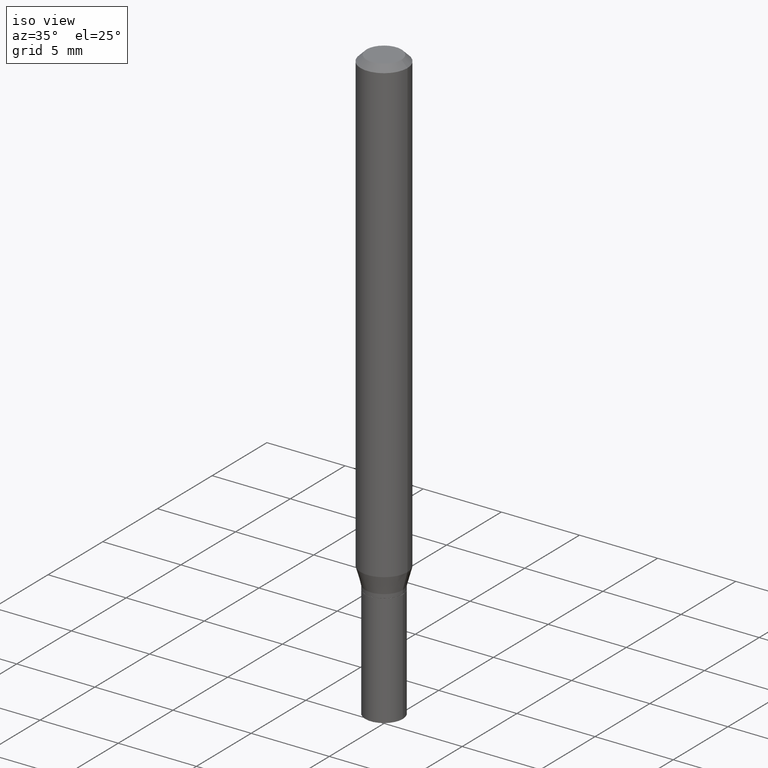
[diagram: clean part render]
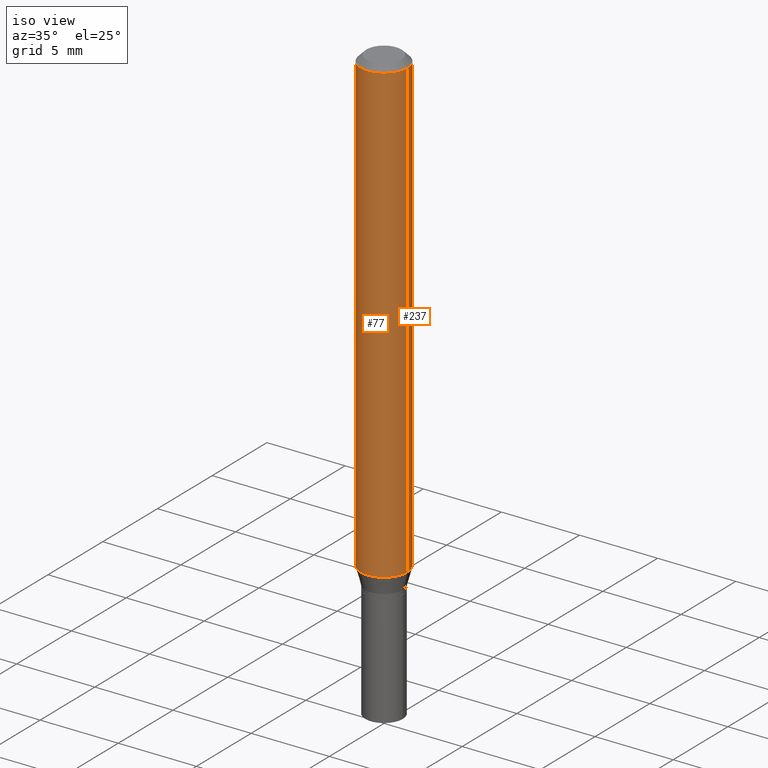
[diagram: same view with one multi-face feature highlighted, each face labeled with its STEP entity id]
A machine part, iso view. The highlighted faces form ONE feature: a constant-radius fillet chain: 2 tangent blend faces with common blend radius 1.4999 mm. The faces share edges in the B-rep.
Their STEP definitions:
[1] entity #237 (Cylinder):
#3 = AXIS2_PLACEMENT_3D ( 'NONE', #349, #136, #198 ) ;
#9 = VECTOR ( 'NONE', #209, 39.37007874015748143 ) ;
#26 = EDGE_LOOP ( 'NONE', ( #162, #150, #332, #99 ) ) ;
#39 = DIRECTION ( 'NONE',  ( 1.000000000000000000, -6.982962677686266711E-15, 0.000000000000000000 ) ) ;
#42 = EDGE_CURVE ( 'NONE', #256, #110, #108, .T. ) ;
#59 = EDGE_CURVE ( 'NONE', #140, #256, #356, .T. ) ;
#61 = EDGE_CURVE ( 'NONE', #140, #389, #252, .T. ) ;
#82 = CARTESIAN_POINT ( 'NONE',  ( 0.05904999999999999832, -4.471057629578783928E-15, -1.162461800470687701 ) ) ;
#84 = DIRECTION ( 'NONE',  ( -2.445468806185136597E-29, 3.491481338843145583E-15, 1.000000000000000000 ) ) ;
#99 = ORIENTED_EDGE ( 'NONE', *, *, #59, .F. ) ;
#108 = CIRCLE ( 'NONE', #294, 0.05904999999999999832 ) ;
#110 = VERTEX_POINT ( 'NONE', #207 ) ;
#112 = CARTESIAN_POINT ( 'NONE',  ( 0.05904999999999999832, -4.123439461173740327E-16, 2.879382386107500220E-30 ) ) ;
#117 = DIRECTION ( 'NONE',  ( 1.000000000000000000, -6.982962677686266711E-15, 4.876176775795936353E-29 ) ) ;
#136 = DIRECTION ( 'NONE',  ( -2.445468806185136597E-29, 3.491481338843145583E-15, 1.000000000000000000 ) ) ;
#140 = VERTEX_POINT ( 'NONE', #82 ) ;
#146 = CYLINDRICAL_SURFACE ( 'NONE', #386, 0.05904999999999999832 ) ;
#150 = ORIENTED_EDGE ( 'NONE', *, *, #408, .T. ) ;
#152 = FACE_OUTER_BOUND ( 'NONE', #26, .T. ) ;
#162 = ORIENTED_EDGE ( 'NONE', *, *, #61, .T. ) ;
#198 = DIRECTION ( 'NONE',  ( 1.000000000000000000, -6.982962677686273021E-15, 0.000000000000000000 ) ) ;
#203 = VECTOR ( 'NONE', #270, 39.37007874015748143 ) ;
#207 = CARTESIAN_POINT ( 'NONE',  ( -0.05904999999999999832, -1.635967466305689734E-15, -0.01499999999999999944 ) ) ;
#209 = DIRECTION ( 'NONE',  ( -2.445468806185136877E-29, 3.491481338843145188E-15, 1.000000000000000000 ) ) ;
#236 = CARTESIAN_POINT ( 'NONE',  ( -0.05904999999999999832, 4.195754854663391478E-16, -2.904631170795521892E-30 ) ) ;
#237 = ADVANCED_FACE ( 'NONE', ( #152 ), #146, .T. ) ;
#240 = DIRECTION ( 'NONE',  ( -2.445468806185136597E-29, 3.491481338843145583E-15, 1.000000000000000000 ) ) ;
#242 = LINE ( 'NONE', #236, #203 ) ;
#252 = CIRCLE ( 'NONE', #3, 0.05904999999999999832 ) ;
#256 = VERTEX_POINT ( 'NONE', #447 ) ;
#270 = DIRECTION ( 'NONE',  ( -2.445468806185136877E-29, 3.491481338843145188E-15, 1.000000000000000000 ) ) ;
#274 = CARTESIAN_POINT ( 'NONE',  ( -0.05904999999999999832, -3.639138197995071092E-15, -1.162461800470687701 ) ) ;
#294 = AXIS2_PLACEMENT_3D ( 'NONE', #410, #240, #39 ) ;
#297 = CARTESIAN_POINT ( 'NONE',  ( 0.000000000000000000, 0.000000000000000000, 0.000000000000000000 ) ) ;
#332 = ORIENTED_EDGE ( 'NONE', *, *, #42, .F. ) ;
#349 = CARTESIAN_POINT ( 'NONE',  ( 2.842764071432877128E-29, -4.058713683461410585E-15, -1.162461800470687701 ) ) ;
#356 = LINE ( 'NONE', #112, #9 ) ;
#386 = AXIS2_PLACEMENT_3D ( 'NONE', #297, #84, #117 ) ;
#389 = VERTEX_POINT ( 'NONE', #274 ) ;
#408 = EDGE_CURVE ( 'NONE', #389, #110, #242, .T. ) ;
#410 = CARTESIAN_POINT ( 'NONE',  ( 3.668203209277705088E-31, -5.237222008264718399E-17, -0.01499999999999999944 ) ) ;
#447 = CARTESIAN_POINT ( 'NONE',  ( 0.05904999999999999832, -4.647161662000212105E-16, -0.01499999999999999944 ) ) ;
[2] entity #77 (Cylinder):
#9 = VECTOR ( 'NONE', #209, 39.37007874015748143 ) ;
#59 = EDGE_CURVE ( 'NONE', #140, #256, #356, .T. ) ;
#77 = ADVANCED_FACE ( 'NONE', ( #427 ), #241, .T. ) ;
#82 = CARTESIAN_POINT ( 'NONE',  ( 0.05904999999999999832, -4.471057629578783928E-15, -1.162461800470687701 ) ) ;
#85 = DIRECTION ( 'NONE',  ( -2.445468806185136597E-29, 3.491481338843145583E-15, 1.000000000000000000 ) ) ;
#106 = DIRECTION ( 'NONE',  ( 1.000000000000000000, -6.982962677686266711E-15, 4.876176775795936353E-29 ) ) ;
#110 = VERTEX_POINT ( 'NONE', #207 ) ;
#112 = CARTESIAN_POINT ( 'NONE',  ( 0.05904999999999999832, -4.123439461173740327E-16, 2.879382386107500220E-30 ) ) ;
#129 = AXIS2_PLACEMENT_3D ( 'NONE', #175, #446, #325 ) ;
#132 = ORIENTED_EDGE ( 'NONE', *, *, #408, .F. ) ;
#140 = VERTEX_POINT ( 'NONE', #82 ) ;
#144 = CIRCLE ( 'NONE', #405, 0.05904999999999999832 ) ;
#147 = ORIENTED_EDGE ( 'NONE', *, *, #273, .T. ) ;
#153 = ORIENTED_EDGE ( 'NONE', *, *, #59, .T. ) ;
#174 = CIRCLE ( 'NONE', #129, 0.05904999999999999832 ) ;
#175 = CARTESIAN_POINT ( 'NONE',  ( 3.668203209277705088E-31, -5.237222008264718399E-17, -0.01499999999999999944 ) ) ;
#183 = EDGE_LOOP ( 'NONE', ( #132, #147, #153, #298 ) ) ;
#203 = VECTOR ( 'NONE', #270, 39.37007874015748143 ) ;
#206 = EDGE_CURVE ( 'NONE', #110, #256, #174, .T. ) ;
#207 = CARTESIAN_POINT ( 'NONE',  ( -0.05904999999999999832, -1.635967466305689734E-15, -0.01499999999999999944 ) ) ;
#209 = DIRECTION ( 'NONE',  ( -2.445468806185136877E-29, 3.491481338843145188E-15, 1.000000000000000000 ) ) ;
#222 = CARTESIAN_POINT ( 'NONE',  ( 2.842764071432877128E-29, -4.058713683461410585E-15, -1.162461800470687701 ) ) ;
#236 = CARTESIAN_POINT ( 'NONE',  ( -0.05904999999999999832, 4.195754854663391478E-16, -2.904631170795521892E-30 ) ) ;
#241 = CYLINDRICAL_SURFACE ( 'NONE', #275, 0.05904999999999999832 ) ;
#242 = LINE ( 'NONE', #236, #203 ) ;
#256 = VERTEX_POINT ( 'NONE', #447 ) ;
#270 = DIRECTION ( 'NONE',  ( -2.445468806185136877E-29, 3.491481338843145188E-15, 1.000000000000000000 ) ) ;
#273 = EDGE_CURVE ( 'NONE', #389, #140, #144, .T. ) ;
#274 = CARTESIAN_POINT ( 'NONE',  ( -0.05904999999999999832, -3.639138197995071092E-15, -1.162461800470687701 ) ) ;
#275 = AXIS2_PLACEMENT_3D ( 'NONE', #348, #318, #106 ) ;
#298 = ORIENTED_EDGE ( 'NONE', *, *, #206, .F. ) ;
#318 = DIRECTION ( 'NONE',  ( -2.445468806185136597E-29, 3.491481338843145583E-15, 1.000000000000000000 ) ) ;
#325 = DIRECTION ( 'NONE',  ( 1.000000000000000000, -6.982962677686266711E-15, 0.000000000000000000 ) ) ;
#348 = CARTESIAN_POINT ( 'NONE',  ( 0.000000000000000000, 0.000000000000000000, 0.000000000000000000 ) ) ;
#356 = LINE ( 'NONE', #112, #9 ) ;
#362 = DIRECTION ( 'NONE',  ( 1.000000000000000000, -6.982962677686273021E-15, 0.000000000000000000 ) ) ;
#389 = VERTEX_POINT ( 'NONE', #274 ) ;
#405 = AXIS2_PLACEMENT_3D ( 'NONE', #222, #85, #362 ) ;
#408 = EDGE_CURVE ( 'NONE', #389, #110, #242, .T. ) ;
#427 = FACE_OUTER_BOUND ( 'NONE', #183, .T. ) ;
#446 = DIRECTION ( 'NONE',  ( -2.445468806185136597E-29, 3.491481338843145583E-15, 1.000000000000000000 ) ) ;
#447 = CARTESIAN_POINT ( 'NONE',  ( 0.05904999999999999832, -4.647161662000212105E-16, -0.01499999999999999944 ) ) ;